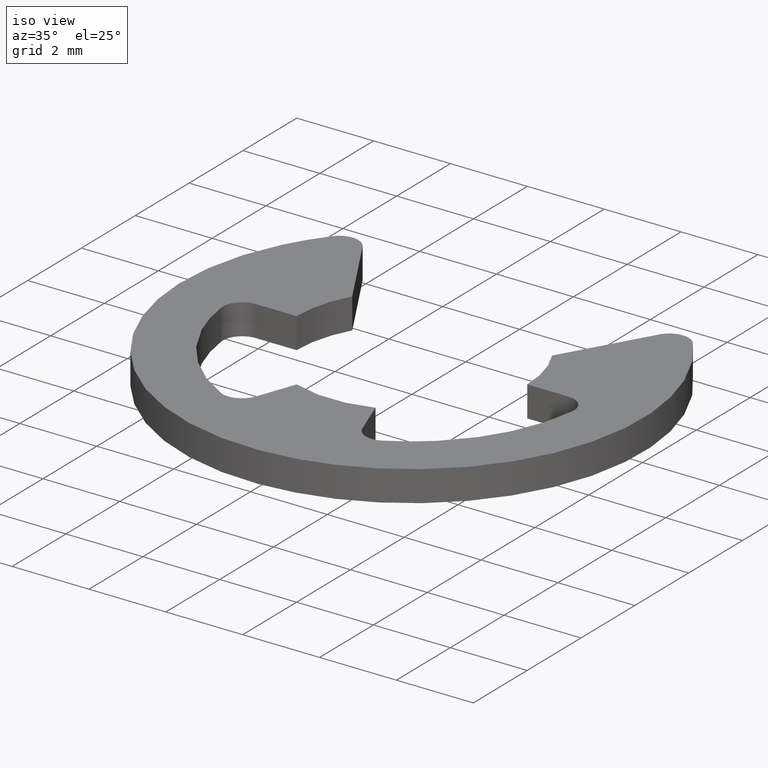
[diagram: clean part render]
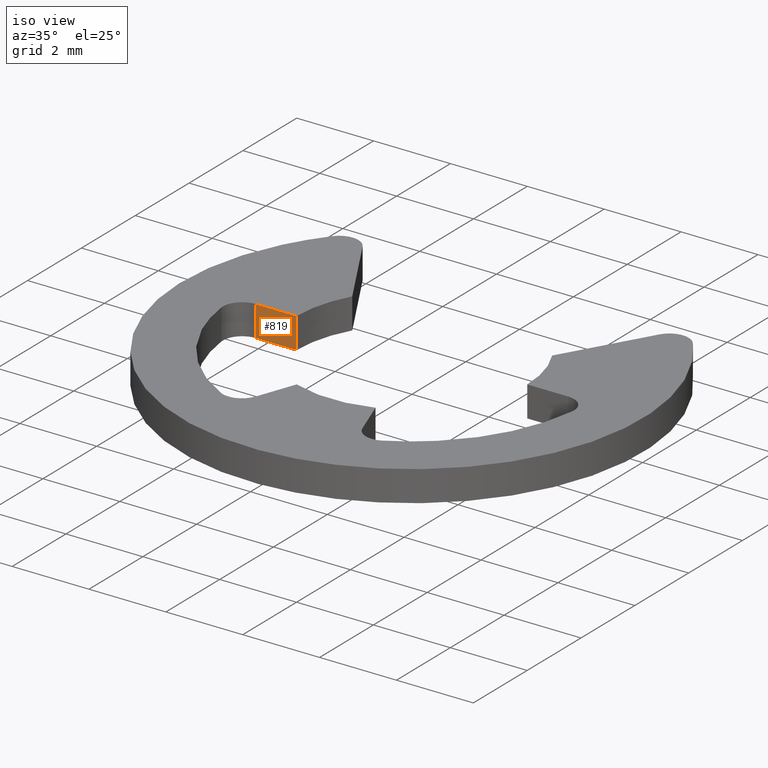
[diagram: same view with one face highlighted and labeled with its STEP entity id]
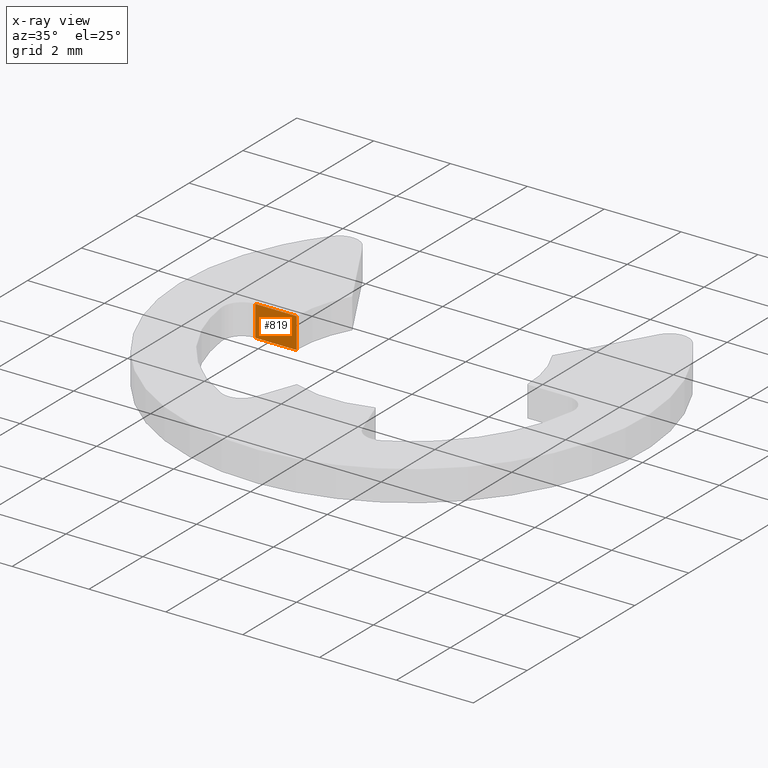
[diagram: x-ray of the same camera — body ghosted, the highlighted face saturated]
A machine part, iso view. The second image highlights one B-rep face of the part: STEP entity #819.
The next image is the same camera in x-ray: the body ghosted, the highlighted face saturated — about 0% of this face is hidden behind the body in this view.
In plain terms, the highlighted face is a freeform B-spline surface patch.
Its self-contained STEP definition (entity closure, byte-faithful):
#111=CARTESIAN_POINT('',(-2.999999999999780,-0.000001151917306,0.0));
#112=VERTEX_POINT('',#111);
#126=CARTESIAN_POINT('',(-4.069397000000000,0.0,0.0));
#127=VERTEX_POINT('',#126);
#128=CARTESIAN_POINT('',(-2.999999999999780,-0.000001151917306,0.0));
#129=CARTESIAN_POINT('',(-4.069397000000000,0.0,0.0));
#130=QUASI_UNIFORM_CURVE('',1,(#128,#129),.UNSPECIFIED.,.F.,.U.);
#131=EDGE_CURVE('',#112,#127,#130,.T.);
#453=CARTESIAN_POINT('',(-4.069397000000000,0.0,0.799987999999918));
#454=VERTEX_POINT('',#453);
#470=CARTESIAN_POINT('',(-2.999999999999780,-0.000001151917306,0.799987999999918));
#471=VERTEX_POINT('',#470);
#472=CARTESIAN_POINT('',(-2.999999999999780,-0.000001151917306,0.799987999999918));
#473=CARTESIAN_POINT('',(-4.069397000000000,0.0,0.799987999999918));
#474=QUASI_UNIFORM_CURVE('',1,(#472,#473),.UNSPECIFIED.,.F.,.U.);
#475=EDGE_CURVE('',#471,#454,#474,.T.);
#794=CARTESIAN_POINT('',(-4.069397000000000,0.0,0.799987999999918));
#795=CARTESIAN_POINT('',(-4.069397000000000,0.0,0.0));
#796=QUASI_UNIFORM_CURVE('',1,(#794,#795),.UNSPECIFIED.,.F.,.U.);
#797=EDGE_CURVE('',#454,#127,#796,.T.);
#804=CARTESIAN_POINT('',(-4.122813347961111,0.0,0.839947369010522));
#805=CARTESIAN_POINT('',(-4.122813347961111,0.0,-0.039959419077755));
#806=CARTESIAN_POINT('',(-2.946583594671744,0.0,0.839947369010522));
#807=CARTESIAN_POINT('',(-2.946583594671744,0.0,-0.039959419077755));
#808=B_SPLINE_SURFACE_WITH_KNOTS('',1,1,((#804,#806),(#805,#807)),.UNSPECIFIED.,.F.,.F.,.U.,(2,2),(2,2),(0.041708366239443,0.958291685914621),(0.041708358416706,0.958291686286777),.UNSPECIFIED.);
#809=ORIENTED_EDGE('',*,*,#131,.F.);
#810=CARTESIAN_POINT('',(-2.999999999999780,-0.000001151917306,0.799987999999918));
#811=CARTESIAN_POINT('',(-2.999999999999780,-0.000001151917306,0.0));
#812=QUASI_UNIFORM_CURVE('',1,(#810,#811),.UNSPECIFIED.,.F.,.U.);
#813=EDGE_CURVE('',#471,#112,#812,.T.);
#814=ORIENTED_EDGE('',*,*,#813,.F.);
#815=ORIENTED_EDGE('',*,*,#475,.T.);
#816=ORIENTED_EDGE('',*,*,#797,.T.);
#817=EDGE_LOOP('',(#809,#814,#815,#816));
#818=FACE_OUTER_BOUND('',#817,.T.);
#819=ADVANCED_FACE('',(#818),#808,.T.);